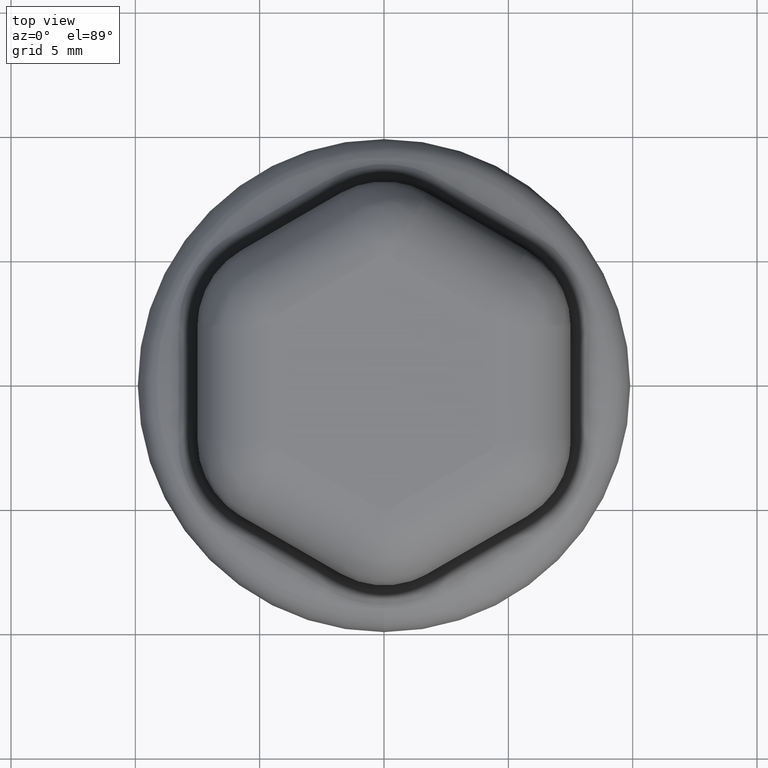
[diagram: clean part render]
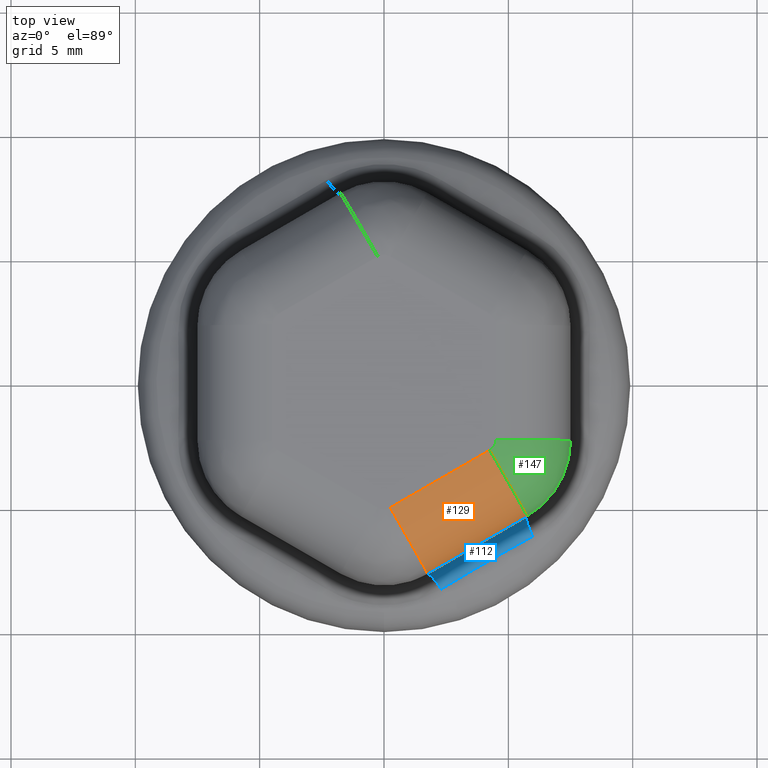
[diagram: same view with three faces highlighted in distinct colors, each labeled with its STEP entity id]
A machine part, top view with three faces highlighted in distinct colors.
Their STEP definitions:

[orange] entity #129 — the highlighted cylindrical surface (partial cylindrical patch) has radius 3 mm, axis along (0.866, 0.5, 0).
#129 = ADVANCED_FACE( '', ( #267 ), #268, .T. );
#267 = FACE_OUTER_BOUND( '', #2601, .T. );
#268 = CYLINDRICAL_SURFACE( '', #2602, 3.00000000000000 );
#2601 = EDGE_LOOP( '', ( #3049, #3050, #3051, #3052 ) );
#2602 = AXIS2_PLACEMENT_3D( '', #3053, #3054, #3055 );
#3049 = ORIENTED_EDGE( '', *, *, #3346, .F. );
#3050 = ORIENTED_EDGE( '', *, *, #3373, .T. );
#3051 = ORIENTED_EDGE( '', *, *, #3374, .F. );
#3052 = ORIENTED_EDGE( '', *, *, #3367, .T. );
#3053 = CARTESIAN_POINT( '', ( 9.75000000000000, 0.433012701892218, 6.00000000000000 ) );
#3054 = DIRECTION( '', ( 0.866025403784439, 0.500000000000000, 0.000000000000000 ) );
#3055 = DIRECTION( '', ( 0.500000000000000, -0.866025403784439, 0.000000000000000 ) );
#3346 = EDGE_CURVE( '', #3574, #3586, #3588, .F. );
#3367 = EDGE_CURVE( '', #3619, #3586, #3620, .T. );
#3373 = EDGE_CURVE( '', #3574, #3628, #3629, .T. );
#3374 = EDGE_CURVE( '', #3619, #3628, #3630, .T. );
#3574 = VERTEX_POINT( '', #4924 );
#3586 = VERTEX_POINT( '', #4958 );
#3588 = LINE( '', #4961, #4962 );
#3619 = VERTEX_POINT( '', #5111 );
#3620 = CIRCLE( '', #5112, 3.00000000000000 );
#3628 = VERTEX_POINT( '', #5120 );
#3629 = CIRCLE( '', #5121, 3.00000000000000 );
#3630 = LINE( '', #5122, #5123 );
#4924 = CARTESIAN_POINT( '', ( 5.75000000000000, -5.34048999000404, 6.00000000000000 ) );
#4958 = CARTESIAN_POINT( '', ( 1.75000000000000, -7.64989106676254, 6.00000000000000 ) );
#4961 = CARTESIAN_POINT( '', ( -4.37545035582375E-015, -8.66025403784439, 6.00000000000000 ) );
#4962 = VECTOR( '', #5326, 1000.00000000000 );
#5111 = CARTESIAN_POINT( '', ( 0.249999999999997, -5.05181485540923, 9.00000000000000 ) );
#5112 = AXIS2_PLACEMENT_3D( '', #5356, #5357, #5358 );
#5120 = CARTESIAN_POINT( '', ( 4.25000000000000, -2.74241377865072, 9.00000000000000 ) );
#5121 = AXIS2_PLACEMENT_3D( '', #5374, #5375, #5376 );
#5122 = CARTESIAN_POINT( '', ( 6.00000000000000, -1.73205080756888, 9.00000000000000 ) );
#5123 = VECTOR( '', #5377, 1000.00000000000 );
#5326 = DIRECTION( '', ( 0.866025403784439, 0.500000000000000, 0.000000000000000 ) );
#5356 = CARTESIAN_POINT( '', ( 0.249999999999998, -5.05181485540922, 6.00000000000000 ) );
#5357 = DIRECTION( '', ( 0.866025403784439, 0.500000000000000, 0.000000000000000 ) );
#5358 = DIRECTION( '', ( -0.500000000000000, 0.866025403784439, 0.000000000000000 ) );
#5374 = CARTESIAN_POINT( '', ( 4.25000000000000, -2.74241377865072, 6.00000000000000 ) );
#5375 = DIRECTION( '', ( -0.866025403784439, -0.500000000000000, 0.000000000000000 ) );
#5376 = DIRECTION( '', ( 0.500000000000000, -0.866025403784439, 0.000000000000000 ) );
#5377 = DIRECTION( '', ( 0.866025403784439, 0.500000000000000, 0.000000000000000 ) );

[blue] entity #112 — the highlighted face is a freeform B-spline surface patch.
#112 = ADVANCED_FACE( '', ( #233 ), #234, .F. );
#233 = FACE_OUTER_BOUND( '', #1953, .T. );
#234 = ( B_SPLINE_SURFACE( 3, 2, ( ( #1955, #1956, #1957 ), ( #1958, #1959, #1960 ), ( #1961, #1962, #1963 ), ( #1964, #1965, #1966 ), ( #1967, #1968, #1969 ), ( #1970, #1971, #1972 ), ( #1973, #1974, #1975 ), ( #1976, #1977, #1978 ), ( #1979, #1980, #1981 ), ( #1982, #1983, #1984 ), ( #1985, #1986, #1987 ), ( #1988, #1989, #1990 ), ( #1991, #1992, #1993 ), ( #1994, #1995, #1996 ) ), .UNSPECIFIED., .F., .F., .F. )B_SPLINE_SURFACE_WITH_KNOTS( ( 4, 2, 2, 2, 2, 2, 4 ), ( 3, 3 ), ( -3.46944695195361E-018, 0.00115470053837925, 0.00173205080756888, 0.00230940107675850, 0.00288675134594813, 0.00346410161513776, 0.00461880215351701 ), ( 0.000000000000000, 1.00000000000000 ), .UNSPECIFIED. )RATIONAL_B_SPLINE_SURFACE( ( ( 1.00000000000000, 0.861484127030373, 1.00000000000000 ), ( 1.00000000000000, 0.862932236169720, 1.00000000000000 ), ( 1.00000000000000, 0.864077247198206, 1.00000000000000 ), ( 1.00000000000000, 0.865238044420370, 1.00000000000000 ), ( 1.00000000000000, 0.865532430485246, 1.00000000000000 ), ( 1.00000000000000, 0.865926121080073, 1.00000000000000 ), ( 1.00000000000000, 0.866025403784460, 1.00000000000000 ), ( 1.00000000000000, 0.866025403784417, 1.00000000000000 ), ( 1.00000000000000, 0.865926121080073, 1.00000000000000 ), ( 1.00000000000000, 0.865532430485246, 1.00000000000000 ), ( 1.00000000000000, 0.865238044420413, 1.00000000000000 ), ( 1.00000000000000, 0.864077247198121, 1.00000000000000 ), ( 1.00000000000000, 0.862932236169785, 1.00000000000000 ), ( 1.00000000000000, 0.861484127030373, 1.00000000000000 ) ) )BOUNDED_SURFACE(  )REPRESENTATION_ITEM( '' )GEOMETRIC_REPRESENTATION_ITEM(  )SURFACE(  ) );
#1953 = EDGE_LOOP( '', ( #2957, #2958, #2959, #2960 ) );
#1955 = CARTESIAN_POINT( '', ( 1.75000000000000, -7.64989106676254, 4.44935156318691 ) );
#1956 = CARTESIAN_POINT( '', ( 1.85876206604942, -7.58709725865128, 3.57417166226124 ) );
#1957 = CARTESIAN_POINT( '', ( 2.29820424906226, -8.22658681946280, 3.15031345751025 ) );
#1958 = CARTESIAN_POINT( '', ( 2.08333533097160, -7.45743982369567, 4.50458476286979 ) );
#1959 = CARTESIAN_POINT( '', ( 2.17472752428460, -7.40467451628356, 3.63234551619034 ) );
#1960 = CARTESIAN_POINT( '', ( 2.60256217790689, -8.04222864896683, 3.20554784790102 ) );
#1961 = CARTESIAN_POINT( '', ( 2.41666666666665, -7.26499088730280, 4.54682000519922 ) );
#1962 = CARTESIAN_POINT( '', ( 2.49013877370994, -7.22257174652350, 3.67688718965594 ) );
#1963 = CARTESIAN_POINT( '', ( 2.90648489962040, -7.85989746906272, 3.24778189941732 ) );
#1964 = CARTESIAN_POINT( '', ( 2.91666666666667, -6.97631575270797, 4.58923898914544 ) );
#1965 = CARTESIAN_POINT( '', ( 2.96281104039247, -6.94967428611576, 3.72163723765724 ) );
#1966 = CARTESIAN_POINT( '', ( 3.36281451977713, -7.58948010073877, 3.29020088352140 ) );
#1967 = CARTESIAN_POINT( '', ( 3.08333333333331, -6.88009070784305, 4.59989759910667 ) );
#1968 = CARTESIAN_POINT( '', ( 3.12029440549587, -6.85875122288044, 3.73288554067982 ) );
#1969 = CARTESIAN_POINT( '', ( 3.51499859944075, -7.49985118618849, 3.30085949340285 ) );
#1970 = CARTESIAN_POINT( '', ( 3.41666666666668, -6.68764061811316, 4.61412391901233 ) );
#1971 = CARTESIAN_POINT( '', ( 3.43518512458709, -6.67694898144785, 3.74790005003951 ) );
#1972 = CARTESIAN_POINT( '', ( 3.81970225670013, -7.32156911182562, 3.31508581336284 ) );
#1973 = CARTESIAN_POINT( '', ( 3.58333333333334, -6.59141557324822, 4.61769145362389 ) );
#1974 = CARTESIAN_POINT( '', ( 3.59259259255453, -6.58606973744446, 3.75166604983941 ) );
#1975 = CARTESIAN_POINT( '', ( 3.97222222213655, -7.23291587239730, 3.31865334794730 ) );
#1976 = CARTESIAN_POINT( '', ( 3.91666666666666, -6.39896548351835, 4.61769145362406 ) );
#1977 = CARTESIAN_POINT( '', ( 3.90740740744546, -6.40431131932211, 3.75166604983966 ) );
#1978 = CARTESIAN_POINT( '', ( 4.27777777786345, -7.05650329004593, 3.31865334794733 ) );
#1979 = CARTESIAN_POINT( '', ( 4.08333333333334, -6.30274043865341, 4.61412391901233 ) );
#1980 = CARTESIAN_POINT( '', ( 4.06481487541304, -6.31343207531875, 3.74790005003960 ) );
#1981 = CARTESIAN_POINT( '', ( 4.43081371805440, -6.96874374510785, 3.31508581336285 ) );
#1982 = CARTESIAN_POINT( '', ( 4.41666666666665, -6.11029034892354, 4.59989759910667 ) );
#1983 = CARTESIAN_POINT( '', ( 4.37970559450399, -6.13162983388612, 3.73288554067973 ) );
#1984 = CARTESIAN_POINT( '', ( 4.73756235212170, -6.79400367447669, 3.30085949340284 ) );
#1985 = CARTESIAN_POINT( '', ( 4.58333333333336, -6.01406530405858, 4.58923898914544 ) );
#1986 = CARTESIAN_POINT( '', ( 4.53718895960748, -6.04070677065080, 3.72163723765741 ) );
#1987 = CARTESIAN_POINT( '', ( 4.89127530886770, -6.70702285271151, 3.29020088352141 ) );
#1988 = CARTESIAN_POINT( '', ( 5.08333333333328, -5.72539016946382, 4.54682000519922 ) );
#1989 = CARTESIAN_POINT( '', ( 5.00986122629015, -5.76780931024312, 3.67688718965562 ) );
#1990 = CARTESIAN_POINT( '', ( 5.35362842953909, -6.44703849331857, 3.24778189941730 ) );
#1991 = CARTESIAN_POINT( '', ( 5.41666466902838, -5.53294123307091, 4.50458476286932 ) );
#1992 = CARTESIAN_POINT( '', ( 5.32527247571460, -5.58570654048197, 3.63234551618991 ) );
#1993 = CARTESIAN_POINT( '', ( 5.66349322409465, -6.27499928547882, 3.20554784790131 ) );
#1994 = CARTESIAN_POINT( '', ( 5.75000000000000, -5.34048999000404, 4.44935156318691 ) );
#1995 = CARTESIAN_POINT( '', ( 5.64123793395057, -5.40328379811529, 3.57417166226124 ) );
#1996 = CARTESIAN_POINT( '', ( 5.97533104756189, -6.10359667250466, 3.15031345751025 ) );
#2957 = ORIENTED_EDGE( '', *, *, #3339, .T. );
#2958 = ORIENTED_EDGE( '', *, *, #3316, .F. );
#2959 = ORIENTED_EDGE( '', *, *, #3331, .F. );
#2960 = ORIENTED_EDGE( '', *, *, #3340, .F. );
#3316 = EDGE_CURVE( '', #3537, #3539, #3540, .T. );
#3331 = EDGE_CURVE( '', #3565, #3537, #3566, .T. );
#3339 = EDGE_CURVE( '', #3577, #3539, #3578, .T. );
#3340 = EDGE_CURVE( '', #3577, #3565, #3579, .T. );
#3537 = VERTEX_POINT( '', #4603 );
#3539 = VERTEX_POINT( '', #4633 );
#3540 = B_SPLINE_CURVE_WITH_KNOTS( '', 3, ( #4634, #4635, #4636, #4637, #4638, #4639, #4640, #4641, #4642, #4643, #4644, #4645, #4646, #4647, #4648, #4649, #4650, #4651 ), .UNSPECIFIED., .F., .F., ( 4, 2, 1, 1, 1, 2, 2, 2, 1, 2, 4 ), ( 0.000000000000000, 0.000531276195801026, 0.00106255239160205, 0.00159382858740308, 0.00212510478320411, 0.00265638097900513, 0.00292201907690565, 0.00305483812585590, 0.00318765717480616, 0.00371893337060718, 0.00425020956640821 ), .UNSPECIFIED. );
#3565 = VERTEX_POINT( '', #4853 );
#3566 = CIRCLE( '', #4854, 1.50000000000000 );
#3577 = VERTEX_POINT( '', #4928 );
#3578 = CIRCLE( '', #4929, 1.50000000000000 );
#3579 = B_SPLINE_CURVE_WITH_KNOTS( '', 3, ( #4930, #4931, #4932, #4933, #4934, #4935, #4936, #4937, #4938, #4939, #4940 ), .UNSPECIFIED., .F., .F., ( 4, 1, 1, 1, 1, 1, 1, 1, 4 ), ( 4.33680868994202E-019, 0.000577350269189626, 0.00115470053837925, 0.00173205080756888, 0.00230940107675850, 0.00288675134594813, 0.00346410161513776, 0.00404145188432738, 0.00461880215351701 ), .UNSPECIFIED. );
#4603 = CARTESIAN_POINT( '', ( 5.97533104756189, -6.10359667250466, 3.15031345751025 ) );
#4633 = CARTESIAN_POINT( '', ( 2.29820424906226, -8.22658681946281, 3.15031345751025 ) );
#4634 = CARTESIAN_POINT( '', ( 5.97533104756189, -6.10359667250466, 3.15031345751025 ) );
#4635 = CARTESIAN_POINT( '', ( 5.82105510358951, -6.18839491698689, 3.17763964132817 ) );
#4636 = CARTESIAN_POINT( '', ( 5.66683593544028, -6.27358011910737, 3.20186613572889 ) );
#4637 = CARTESIAN_POINT( '', ( 5.35855544592513, -6.44483747306234, 3.24374008205989 ) );
#4638 = CARTESIAN_POINT( '', ( 5.05043297254219, -6.61698216308612, 3.27903402875314 ) );
#4639 = CARTESIAN_POINT( '', ( 4.58883408900735, -6.87814218123348, 3.31130394730319 ) );
#4640 = CARTESIAN_POINT( '', ( 4.12789479301572, -7.14243643781994, 3.32225692582110 ) );
#4641 = CARTESIAN_POINT( '', ( 3.82106103559666, -7.32077513406207, 3.31514291378919 ) );
#4642 = CARTESIAN_POINT( '', ( 3.59110270573665, -7.45532216272125, 3.30441587802473 ) );
#4643 = CARTESIAN_POINT( '', ( 3.51447762954392, -7.50030302075949, 3.29994257336327 ) );
#4644 = CARTESIAN_POINT( '', ( 3.39957978609081, -7.56796799875744, 3.29189646690186 ) );
#4645 = CARTESIAN_POINT( '', ( 3.36127725695251, -7.59056108933071, 3.28899096458533 ) );
#4646 = CARTESIAN_POINT( '', ( 3.28473862319457, -7.63577923537177, 3.28274156752851 ) );
#4647 = CARTESIAN_POINT( '', ( 3.09357609727006, -7.74889346766600, 3.26602505898709 ) );
#4648 = CARTESIAN_POINT( '', ( 2.90332128346437, -7.86234242942205, 3.24389574781520 ) );
#4649 = CARTESIAN_POINT( '', ( 2.59998561762026, -8.04421809864175, 3.20192221862969 ) );
#4650 = CARTESIAN_POINT( '', ( 2.44885351517419, -8.13533431582281, 3.17765304536055 ) );
#4651 = CARTESIAN_POINT( '', ( 2.29820424906226, -8.22658681946280, 3.15031345751025 ) );
#4853 = CARTESIAN_POINT( '', ( 5.75000000000000, -5.34048999000404, 4.44935156318691 ) );
#4854 = AXIS2_PLACEMENT_3D( '', #5303, #5304, #5305 );
#4928 = CARTESIAN_POINT( '', ( 1.75000000000000, -7.64989106676254, 4.44935156318691 ) );
#4929 = AXIS2_PLACEMENT_3D( '', #5315, #5316, #5317 );
#4930 = CARTESIAN_POINT( '', ( 1.75000000000000, -7.64989106676254, 4.44935156318691 ) );
#4931 = CARTESIAN_POINT( '', ( 1.91666666666666, -7.55366602189760, 4.47696799723141 ) );
#4932 = CARTESIAN_POINT( '', ( 2.25000000000000, -7.36121593216773, 4.52571889452885 ) );
#4933 = CARTESIAN_POINT( '', ( 2.75000000000000, -7.07254079757291, 4.57858037939576 ) );
#4934 = CARTESIAN_POINT( '', ( 3.25000000000000, -6.78386566297810, 4.61055638448758 ) );
#4935 = CARTESIAN_POINT( '', ( 3.75000000000000, -6.49519052838329, 4.62125898819217 ) );
#4936 = CARTESIAN_POINT( '', ( 4.25000000000000, -6.20651539378848, 4.61055620889696 ) );
#4937 = CARTESIAN_POINT( '', ( 4.75000000000000, -5.91784025919367, 4.57858005238143 ) );
#4938 = CARTESIAN_POINT( '', ( 5.25000000000000, -5.62916512459885, 4.52571845861485 ) );
#4939 = CARTESIAN_POINT( '', ( 5.58333333333333, -5.43671503486897, 4.47696799723141 ) );
#4940 = CARTESIAN_POINT( '', ( 5.75000000000000, -5.34048999000404, 4.44935156318691 ) );
#5303 = CARTESIAN_POINT( '', ( 6.50000000000000, -6.63952809568070, 4.44935156318691 ) );
#5304 = DIRECTION( '', ( -0.857244184246804, -0.494930160536133, 0.142044164845687 ) );
#5305 = DIRECTION( '', ( 0.500000000000000, -0.866025403784439, 0.000000000000000 ) );
#5315 = CARTESIAN_POINT( '', ( 2.50000000000000, -8.94892917243920, 4.44935156318691 ) );
#5316 = DIRECTION( '', ( -0.857244184246804, -0.494930160536133, -0.142044164845686 ) );
#5317 = DIRECTION( '', ( 0.500000000000000, -0.866025403784439, 0.000000000000000 ) );

[green] entity #147 — the highlighted face is a freeform B-spline surface patch.
#147 = ADVANCED_FACE( '', ( #305 ), #306, .T. );
#305 = FACE_OUTER_BOUND( '', #2661, .T. );
#306 = ( B_SPLINE_SURFACE( 3, 3, ( ( #2663, #2664, #2665, #2666 ), ( #2667, #2668, #2669, #2670 ), ( #2671, #2672, #2673, #2674 ), ( #2675, #2676, #2677, #2678 ) ), .UNSPECIFIED., .F., .F., .F. )B_SPLINE_SURFACE_WITH_KNOTS( ( 4, 4 ), ( 4, 4 ), ( 5.23598775598299, 6.28318530717959 ), ( 0.000000000000000, 1.57079632679490 ), .UNSPECIFIED. )RATIONAL_B_SPLINE_SURFACE( ( ( 1.00000000000000, 0.910683602522959, 0.910683602522959, 1.00000000000000 ), ( 0.804737854124365, 0.732861568080572, 0.732861568080572, 0.804737854124365 ), ( 0.804737854124365, 0.732861568080572, 0.732861568080572, 0.804737854124365 ), ( 1.00000000000000, 0.910683602522959, 0.910683602522959, 1.00000000000000 ) ) )BOUNDED_SURFACE(  )REPRESENTATION_ITEM( '' )GEOMETRIC_REPRESENTATION_ITEM(  )SURFACE(  ) );
#2661 = EDGE_LOOP( '', ( #3195, #3196, #3197, #3198 ) );
#2663 = CARTESIAN_POINT( '', ( 4.25000000000000, -2.74241377865072, 9.00000000000000 ) );
#2664 = CARTESIAN_POINT( '', ( 4.40849364905389, -2.65090742770461, 9.00000000000000 ) );
#2665 = CARTESIAN_POINT( '', ( 4.50000000000000, -2.49241377865072, 9.00000000000000 ) );
#2666 = CARTESIAN_POINT( '', ( 4.50000000000000, -2.30940107675850, 9.00000000000000 ) );
#2667 = CARTESIAN_POINT( '', ( 5.12867965644036, -4.26433158718259, 9.00000000000000 ) );
#2668 = CARTESIAN_POINT( '', ( 5.84423388588885, -3.85120616019072, 9.00000000000000 ) );
#2669 = CARTESIAN_POINT( '', ( 6.25735931288072, -3.13565193074223, 9.00000000000000 ) );
#2670 = CARTESIAN_POINT( '', ( 6.25735931288072, -2.30940107675850, 9.00000000000000 ) );
#2671 = CARTESIAN_POINT( '', ( 5.75000000000000, -5.34048999000404, 7.75735931288071 ) );
#2672 = CARTESIAN_POINT( '', ( 6.85945554337723, -4.69994553338127, 7.75735931288071 ) );
#2673 = CARTESIAN_POINT( '', ( 7.50000000000000, -3.59048999000404, 7.75735931288071 ) );
#2674 = CARTESIAN_POINT( '', ( 7.50000000000000, -2.30940107675850, 7.75735931288071 ) );
#2675 = CARTESIAN_POINT( '', ( 5.75000000000000, -5.34048999000404, 6.00000000000000 ) );
#2676 = CARTESIAN_POINT( '', ( 6.85945554337723, -4.69994553338127, 6.00000000000000 ) );
#2677 = CARTESIAN_POINT( '', ( 7.50000000000000, -3.59048999000404, 6.00000000000000 ) );
#2678 = CARTESIAN_POINT( '', ( 7.50000000000000, -2.30940107675850, 6.00000000000000 ) );
#3195 = ORIENTED_EDGE( '', *, *, #3408, .F. );
#3196 = ORIENTED_EDGE( '', *, *, #3396, .T. );
#3197 = ORIENTED_EDGE( '', *, *, #3373, .F. );
#3198 = ORIENTED_EDGE( '', *, *, #3338, .T. );
#3338 = EDGE_CURVE( '', #3574, #3562, #3576, .T. );
#3373 = EDGE_CURVE( '', #3574, #3628, #3629, .T. );
#3396 = EDGE_CURVE( '', #3662, #3628, #3663, .F. );
#3408 = EDGE_CURVE( '', #3662, #3562, #3682, .T. );
#3562 = VERTEX_POINT( '', #4848 );
#3574 = VERTEX_POINT( '', #4924 );
#3576 = CIRCLE( '', #4927, 3.50000000000000 );
#3628 = VERTEX_POINT( '', #5120 );
#3629 = CIRCLE( '', #5121, 3.00000000000000 );
#3662 = VERTEX_POINT( '', #5162 );
#3663 = CIRCLE( '', #5163, 0.500000000000000 );
#3682 = CIRCLE( '', #5186, 3.00000000000000 );
#4848 = CARTESIAN_POINT( '', ( 7.50000000000000, -2.30940107675850, 6.00000000000000 ) );
#4924 = CARTESIAN_POINT( '', ( 5.75000000000000, -5.34048999000404, 6.00000000000000 ) );
#4927 = AXIS2_PLACEMENT_3D( '', #5312, #5313, #5314 );
#5120 = CARTESIAN_POINT( '', ( 4.25000000000000, -2.74241377865072, 9.00000000000000 ) );
#5121 = AXIS2_PLACEMENT_3D( '', #5374, #5375, #5376 );
#5162 = CARTESIAN_POINT( '', ( 4.50000000000000, -2.30940107675850, 9.00000000000000 ) );
#5163 = AXIS2_PLACEMENT_3D( '', #5427, #5428, #5429 );
#5186 = AXIS2_PLACEMENT_3D( '', #5455, #5456, #5457 );
#5312 = CARTESIAN_POINT( '', ( 4.00000000000000, -2.30940107675850, 6.00000000000000 ) );
#5313 = DIRECTION( '', ( 0.000000000000000, 0.000000000000000, 1.00000000000000 ) );
#5314 = DIRECTION( '', ( 1.00000000000000, 0.000000000000000, 0.000000000000000 ) );
#5374 = CARTESIAN_POINT( '', ( 4.25000000000000, -2.74241377865072, 6.00000000000000 ) );
#5375 = DIRECTION( '', ( -0.866025403784439, -0.500000000000000, 0.000000000000000 ) );
#5376 = DIRECTION( '', ( 0.500000000000000, -0.866025403784439, 0.000000000000000 ) );
#5427 = CARTESIAN_POINT( '', ( 4.00000000000000, -2.30940107675850, 9.00000000000000 ) );
#5428 = DIRECTION( '', ( 0.000000000000000, 0.000000000000000, 1.00000000000000 ) );
#5429 = DIRECTION( '', ( 1.00000000000000, 0.000000000000000, 0.000000000000000 ) );
#5455 = CARTESIAN_POINT( '', ( 4.50000000000000, -2.30940107675850, 6.00000000000000 ) );
#5456 = DIRECTION( '', ( 2.89120579329468E-016, 1.00000000000000, 0.000000000000000 ) );
#5457 = DIRECTION( '', ( -1.00000000000000, 2.89120579329468E-016, 0.000000000000000 ) );